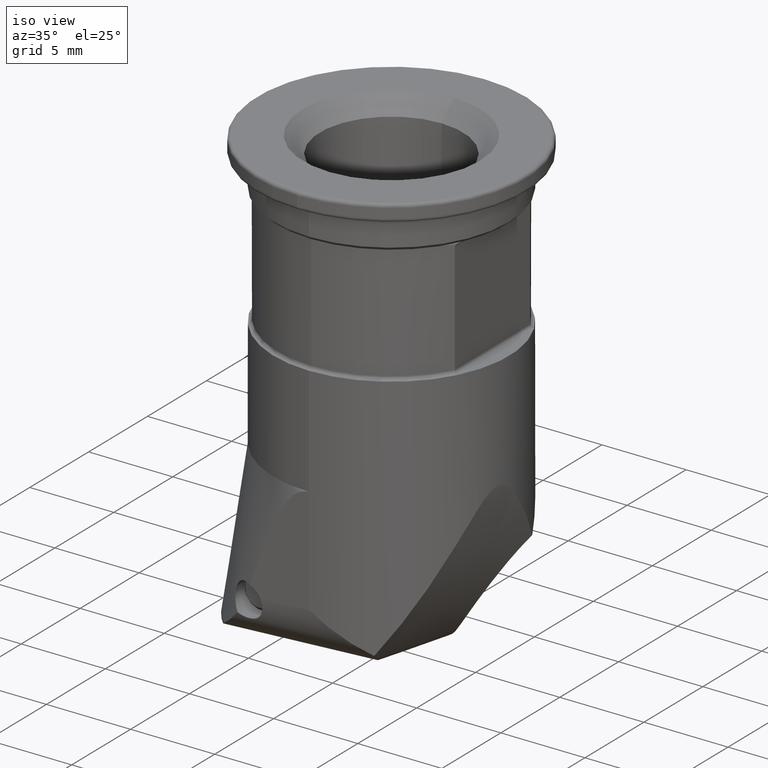
[diagram: clean part render]
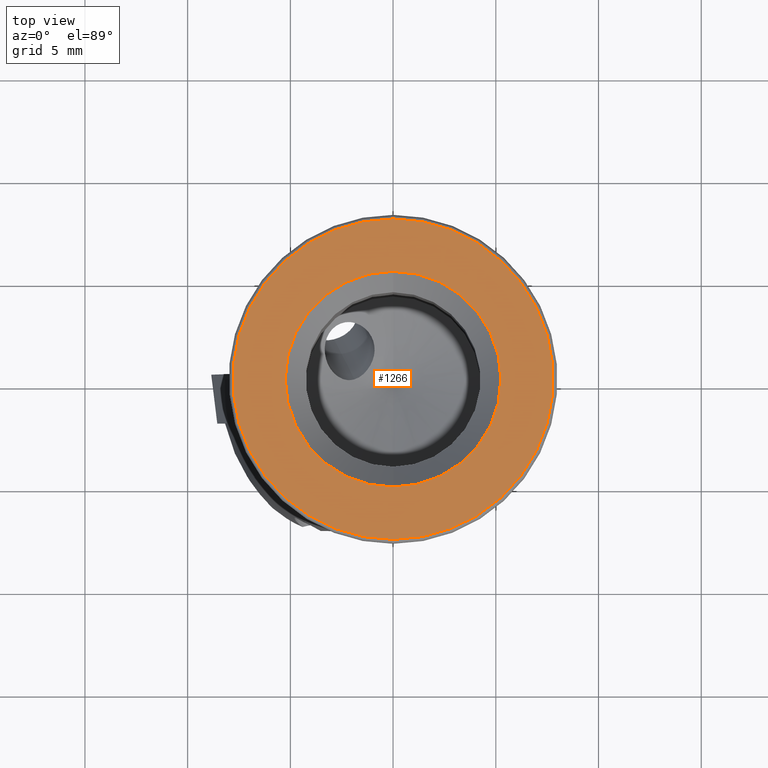
[diagram: tour spotlight — one face highlighted and labeled with its STEP entity id]
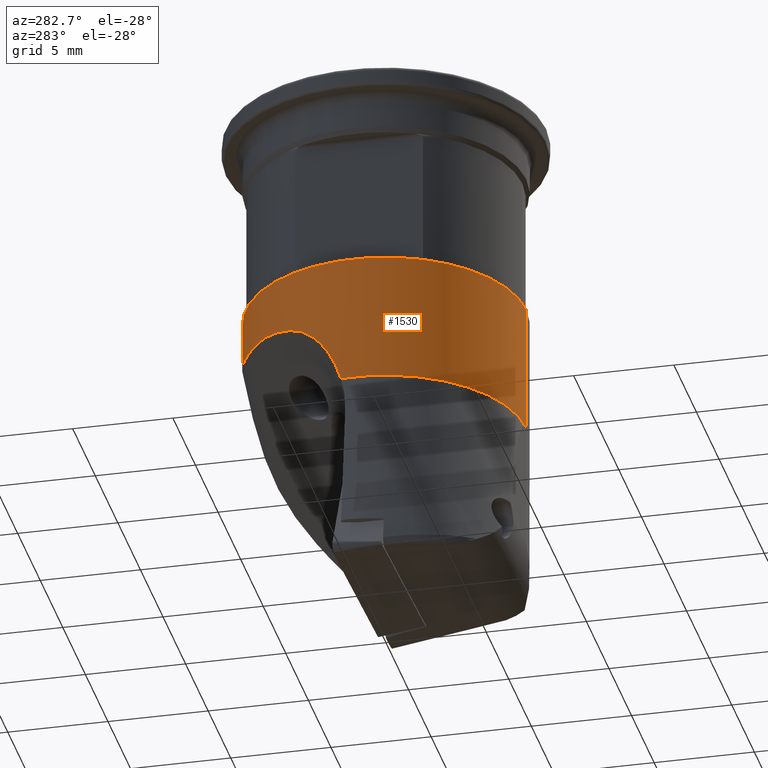
[diagram: tour spotlight — one face highlighted and labeled with its STEP entity id]
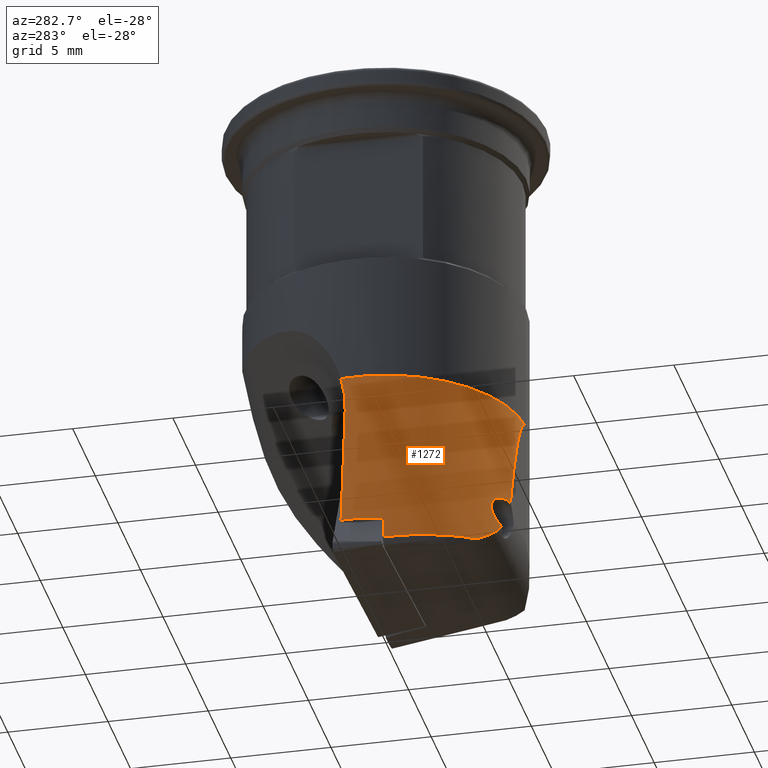
[diagram: tour spotlight — one face highlighted and labeled with its STEP entity id]
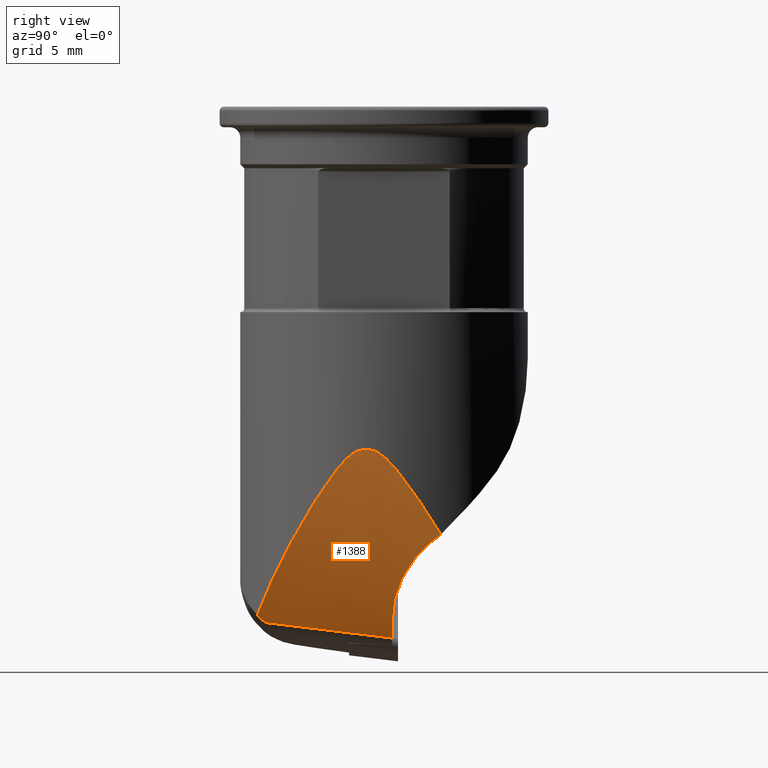
[diagram: tour spotlight — one face highlighted and labeled with its STEP entity id]
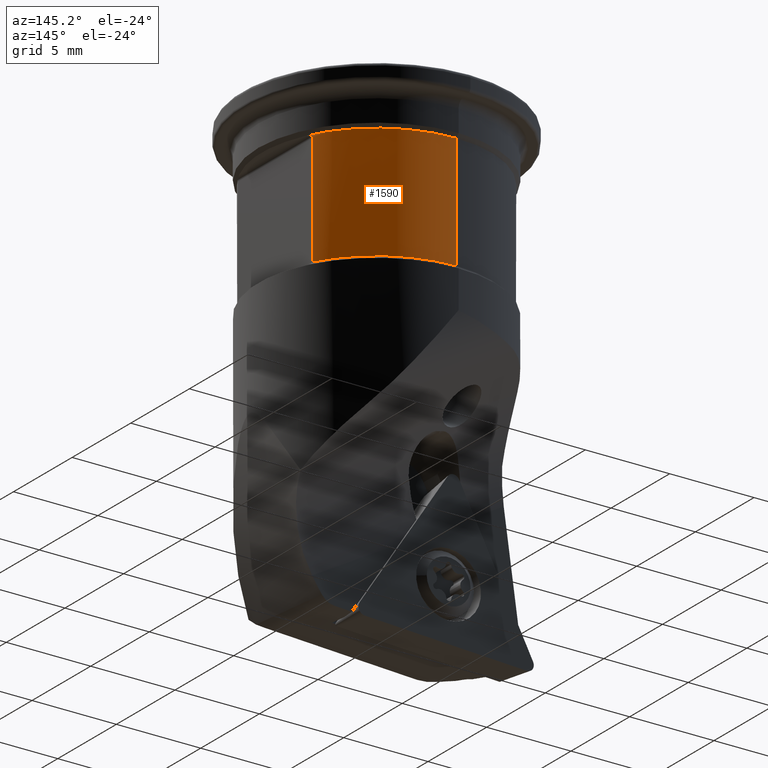
[diagram: tour spotlight — one face highlighted and labeled with its STEP entity id]
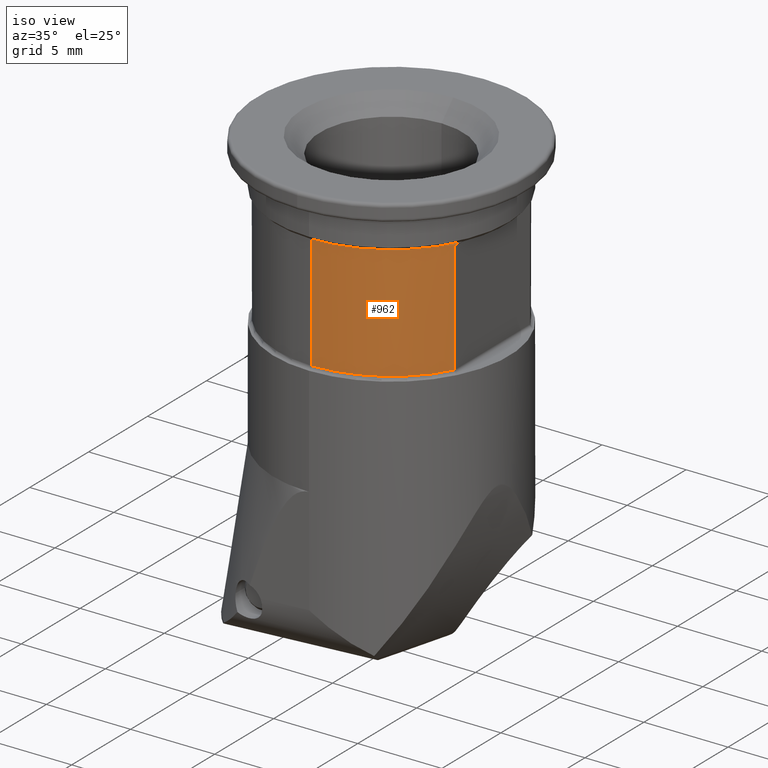
[diagram: tour spotlight — one face highlighted and labeled with its STEP entity id]
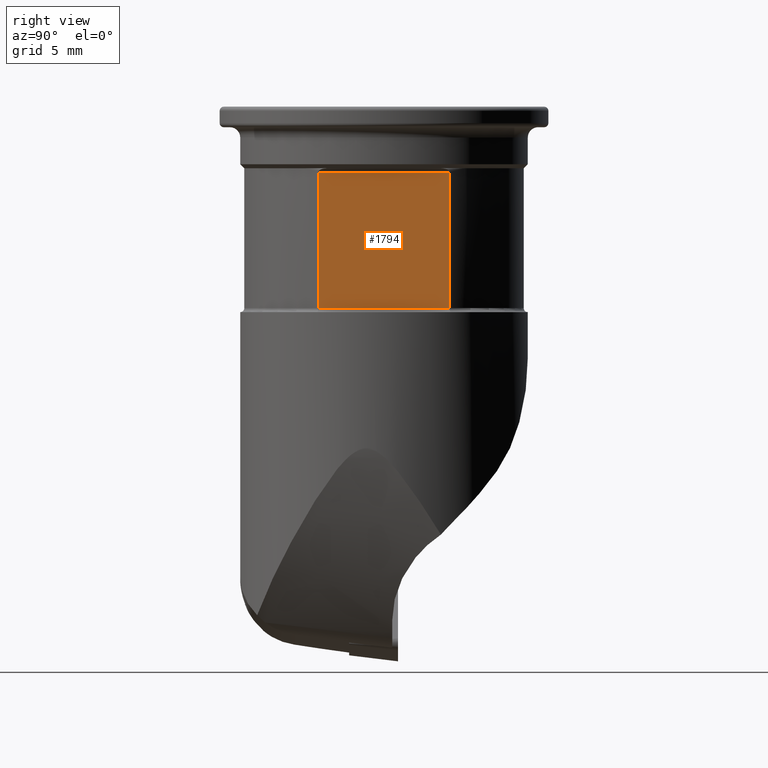
[diagram: tour spotlight — one face highlighted and labeled with its STEP entity id]
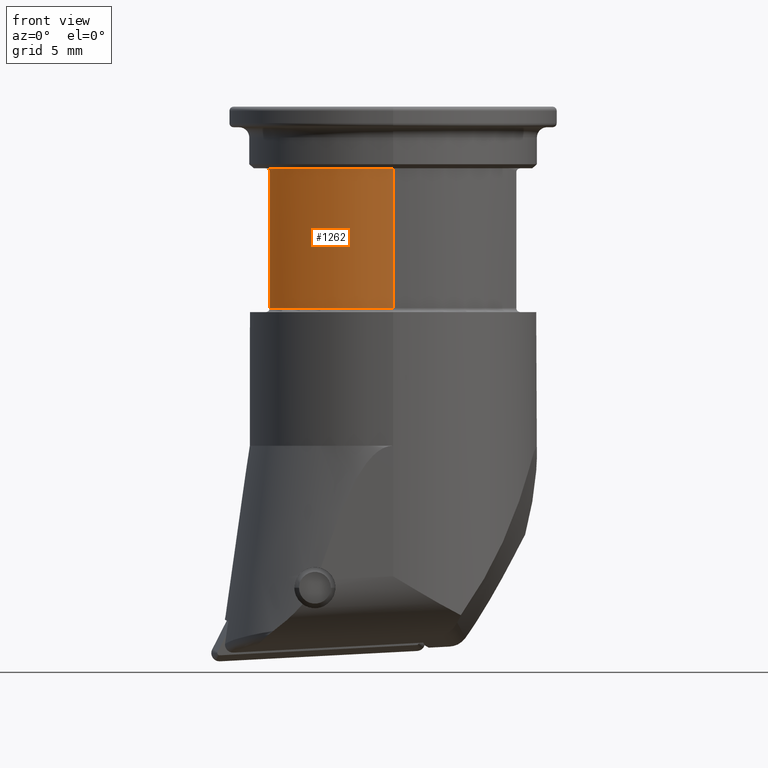
[diagram: tour spotlight — one face highlighted and labeled with its STEP entity id]
A machine part: a face-by-face anatomy tour. The part has 132 B-rep faces; the first image is the clean iso view, then the 8 largest visible faces are spotlighted one at a time (largest first), each with its STEP entity span.

Face 1 — top view, entity #1266. In plain terms, the highlighted planar face has unit normal (0, 0, 1).
Definition (entity closure, byte-faithful):
#712=EDGE_CURVE('NONE',#1644,#1148,#2025,.T.);
#846=VERTEX_POINT('NONE',#2171);
#874=EDGE_CURVE('NONE',#846,#1454,#2202,.T.);
#896=EDGE_CURVE('NONE',#1454,#846,#2226,.F.);
#1148=VERTEX_POINT('NONE',#2505);
#1266=ADVANCED_FACE('NONE',(#2636,#2637),#2638,.T.);
#1454=VERTEX_POINT('NONE',#2853);
#1644=VERTEX_POINT('NONE',#3064);
#1724=EDGE_CURVE('NONE',#1148,#1644,#3152,.T.);
#2025=CIRCLE('',#3487,7.8);
#2171=CARTESIAN_POINT('',(0.0,-5.25,0.0));
#2202=CIRCLE('',#3783,5.25);
#2226=CIRCLE('',#3823,5.25);
#2505=CARTESIAN_POINT('',(0.0,-7.8,0.0));
#2636=FACE_OUTER_BOUND('',#5116,.T.);
#2637=FACE_BOUND('',#5117,.T.);
#2638=PLANE('',#5118);
#2853=CARTESIAN_POINT('',(6.4293956955236E-016,5.25,-7.87373885897475E-032));
#3064=CARTESIAN_POINT('',(9.67470971326409E-016,7.8,-1.18481022830287E-031));
#3152=CIRCLE('',#6457,7.8);
#3487=AXIS2_PLACEMENT_3D('',#6990,#6991,#6992);
#3783=AXIS2_PLACEMENT_3D('',#7201,#7202,#7203);
#3823=AXIS2_PLACEMENT_3D('',#7235,#7236,#7237);
#5116=EDGE_LOOP('',(#7706,#7707));
#5117=EDGE_LOOP('',(#7708,#7709));
#5118=AXIS2_PLACEMENT_3D('',#7710,#7711,#7712);
#6457=AXIS2_PLACEMENT_3D('',#8370,#8371,#8372);
#6990=CARTESIAN_POINT('',(0.0,0.0,0.0));
#6991=DIRECTION('',(1.22464679914735E-016,-0.0,1.0));
#6992=DIRECTION('',(0.0,1.0,0.0));
#7201=CARTESIAN_POINT('',(0.0,0.0,0.0));
#7202=DIRECTION('',(-1.22464679914735E-016,-0.0,-1.0));
#7203=DIRECTION('',(0.0,-1.0,0.0));
#7235=CARTESIAN_POINT('',(0.0,0.0,0.0));
#7236=DIRECTION('',(1.22464679914735E-016,0.0,1.0));
#7237=DIRECTION('',(0.0,-1.0,0.0));
#7706=ORIENTED_EDGE('',*,*,#1724,.T.);
#7707=ORIENTED_EDGE('',*,*,#712,.T.);
#7708=ORIENTED_EDGE('',*,*,#874,.T.);
#7709=ORIENTED_EDGE('',*,*,#896,.T.);
#7710=CARTESIAN_POINT('',(0.0,0.0,0.0));
#7711=DIRECTION('',(1.22464679914735E-016,0.0,1.0));
#7712=DIRECTION('',(0.0,-1.0,0.0));
#8370=CARTESIAN_POINT('',(0.0,0.0,0.0));
#8371=DIRECTION('',(1.22464679914735E-016,-0.0,1.0));
#8372=DIRECTION('',(0.0,1.0,0.0));

Face 2 — auxiliary view, entity #1530. In plain terms, the highlighted cylindrical surface (partial cylindrical patch) has radius 7 mm, axis along (0, 0, 1).
Definition (entity closure, byte-faithful):
#736=VERTEX_POINT('NONE',#2050);
#764=EDGE_CURVE('NONE',#1706,#958,#2080,.F.);
#774=EDGE_CURVE('NONE',#1180,#1252,#2092,.T.);
#958=VERTEX_POINT('NONE',#2292);
#1066=EDGE_CURVE('NONE',#736,#1180,#2415,.T.);
#1070=VERTEX_POINT('NONE',#2419);
#1150=EDGE_CURVE('NONE',#958,#1712,#2507,.T.);
#1180=VERTEX_POINT('NONE',#2542);
#1186=EDGE_CURVE('NONE',#1070,#1524,#2548,.T.);
#1252=VERTEX_POINT('NONE',#2621);
#1400=VERTEX_POINT('NONE',#2795);
#1524=VERTEX_POINT('NONE',#2928);
#1530=ADVANCED_FACE('NONE',(#2934),#2935,.T.);
#1626=EDGE_CURVE('NONE',#1712,#1070,#3046,.T.);
#1706=VERTEX_POINT('NONE',#3134);
#1712=VERTEX_POINT('NONE',#3140);
#1714=EDGE_CURVE('NONE',#1524,#1252,#3142,.T.);
#1842=EDGE_CURVE('NONE',#1400,#1706,#3276,.F.);
#1852=EDGE_CURVE('NONE',#736,#1400,#3286,.F.);
#2050=CARTESIAN_POINT('',(-6.96649577815182,0.684058895851017,-16.5035189826904));
#2080=B_SPLINE_CURVE_WITH_KNOTS('',3,(#3578,#3579,#3580,#3581,#3582,#3583,#3584,#3585,#3586,#3587,#3588,#3589,#3590,#3591,#3592,#3593),.UNSPECIFIED.,.F.,.F.,(4,2,2,2,2,2,2,4),(0.0,0.00471379930615886,1.24146566658268,2.4782175338592,3.71496940113573,4.95172126841225,6.01260087204641,7.07348047568056),.UNSPECIFIED.);
#2092=LINE('',#3606,#3607);
#2292=CARTESIAN_POINT('',(-1.77635683940025E-015,7.0,-12.2321305522334));
#2415=CIRCLE('',#4410,7.0);
#2419=CARTESIAN_POINT('',(-6.2,3.24961536185438,-10.0));
#2507=LINE('',#4572,#4573);
#2542=CARTESIAN_POINT('',(-2.02109816968193E-015,-7.0,-16.5035189826904));
#2548=CIRCLE('',#4940,7.0);
#2621=CARTESIAN_POINT('',(-1.22464679914735E-015,-7.0,-10.0));
#2795=CARTESIAN_POINT('',(-6.11882341631133,3.40000000000003,-13.0994262057022));
#2928=CARTESIAN_POINT('',(-6.2,-3.24961536185438,-10.0));
#2934=FACE_OUTER_BOUND('',#5665,.T.);
#2935=CYLINDRICAL_SURFACE('',#5666,7.0);
#3046=CIRCLE('',#5877,7.0);
#3134=CARTESIAN_POINT('',(-4.33012701892221,5.49999999999999,-12.7321305522333));
#3140=CARTESIAN_POINT('',(-3.67394039744206E-016,7.0,-10.0));
#3142=CIRCLE('',#6443,7.0);
#3276=ELLIPSE('',#6714,9.33333333333331,7.0);
#3286=B_SPLINE_CURVE_WITH_KNOTS('',3,(#6728,#6729,#6730,#6731,#6732,#6733,#6734,#6735,#6736,#6737,#6738,#6739,#6740,#6741,#6742,#6743,#6744,#6745,#6746,#6747),.UNSPECIFIED.,.F.,.F.,(4,2,2,2,2,2,2,2,2,4),(3.65690770992699,4.87587694656933,5.42319808552904,5.97051922448876,6.51784036344848,7.0651615024082,8.36260439073849,9.66004727906877,10.9574901673991,12.2549330557293),.UNSPECIFIED.);
#3578=CARTESIAN_POINT('',(-1.77635683940025E-015,7.0,-12.2321305522334));
#3579=CARTESIAN_POINT('',(-0.00154679606723022,7.0,-12.2324067770284));
#3580=CARTESIAN_POINT('',(-0.00340295123879858,6.99999934375005,-12.2327382467437));
#3581=CARTESIAN_POINT('',(-0.410780033615323,6.9997112846089,-12.3054870300787));
#3582=CARTESIAN_POINT('',(-0.83162697326785,6.96355534706911,-12.3807465780462));
#3583=CARTESIAN_POINT('',(-1.67272178864028,6.81063200749847,-12.5204488133864));
#3584=CARTESIAN_POINT('',(-2.09298754200636,6.69389453373562,-12.5848166145514));
#3585=CARTESIAN_POINT('',(-2.90479848923066,6.38364861419489,-12.6851420304646));
#3586=CARTESIAN_POINT('',(-3.29693436668745,6.18990533813375,-12.7211058184819));
#3587=CARTESIAN_POINT('',(-4.02938952746506,5.74009793923253,-12.748447360759));
#3588=CARTESIAN_POINT('',(-4.36969737008418,5.48400719135509,-12.7396934149145));
#3589=CARTESIAN_POINT('',(-4.93741738795828,4.97453114581307,-12.6711663407563));
#3590=CARTESIAN_POINT('',(-5.18864474957123,4.71237172398532,-12.6170143465521));
#3591=CARTESIAN_POINT('',(-5.64284890290944,4.15773229210553,-12.4486469678582));
#3592=CARTESIAN_POINT('',(-5.84584601929945,3.86532140557128,-12.3342587570366));
#3593=CARTESIAN_POINT('',(-6.01871477682408,3.57422333315078,-12.186259627674));
#3606=CARTESIAN_POINT('',(1.26060226389638E-016,-7.0,1.02935986504359));
#3607=VECTOR('',#7065,1000.0);
#4410=AXIS2_PLACEMENT_3D('',#7454,#7455,#7456);
#4572=CARTESIAN_POINT('',(9.83312985792785E-016,7.0,1.02935986504359));
#4573=VECTOR('',#7564,1000.0);
#4940=AXIS2_PLACEMENT_3D('',#7613,#7614,#7615);
#5665=EDGE_LOOP('',(#8093,#8094,#8095,#8096,#8097,#8098,#8099,#8100,#8101));
#5666=AXIS2_PLACEMENT_3D('',#8102,#8103,#8104);
#5877=AXIS2_PLACEMENT_3D('',#8269,#8270,#8271);
#6443=AXIS2_PLACEMENT_3D('',#8363,#8364,#8365);
#6714=AXIS2_PLACEMENT_3D('',#8467,#8468,#8469);
#6728=CARTESIAN_POINT('',(-4.85556624986853,5.04216981002601,-13.0803067967852));
#6729=CARTESIAN_POINT('',(-5.14491812547995,4.763526437365,-12.98800233227));
#6730=CARTESIAN_POINT('',(-5.41219176688436,4.45791544160328,-12.9394270227268));
#6731=CARTESIAN_POINT('',(-5.75928965197452,3.98294025039694,-12.9631764650231));
#6732=CARTESIAN_POINT('',(-5.86472268404289,3.82628756436301,-12.984238875944));
#6733=CARTESIAN_POINT('',(-6.06192489067917,3.50549786814772,-13.0600089183192));
#6734=CARTESIAN_POINT('',(-6.15370516318144,3.34138161912166,-13.1147755495922));
#6735=CARTESIAN_POINT('',(-6.31853713319551,3.01811302278732,-13.257046917449));
#6736=CARTESIAN_POINT('',(-6.39179421322021,2.85867272363416,-13.3446811780785));
#6737=CARTESIAN_POINT('',(-6.51898357472284,2.55536614862716,-13.5447588118523));
#6738=CARTESIAN_POINT('',(-6.57298442937728,2.41149865616226,-13.6571567402523));
#6739=CARTESIAN_POINT('',(-6.72606747084674,1.96705736414185,-14.0535981328157));
#6740=CARTESIAN_POINT('',(-6.79677740620689,1.69186047363564,-14.3862609774018));
#6741=CARTESIAN_POINT('',(-6.89739829834779,1.21838896116963,-15.1237060823424));
#6742=CARTESIAN_POINT('',(-6.92705650482825,1.02034273323552,-15.5286694176216));
#6743=CARTESIAN_POINT('',(-6.96619566260151,0.705213470514951,-16.3780661149278));
#6744=CARTESIAN_POINT('',(-6.97565368306959,0.588316117806383,-16.822611651267));
#6745=CARTESIAN_POINT('',(-6.98685142833798,0.435622852014441,-17.7159643206606));
#6746=CARTESIAN_POINT('',(-6.98856208386246,0.400000000000001,-18.1648013890902));
#6747=CARTESIAN_POINT('',(-6.98856208386246,0.4,-18.5972823518669));
#7065=DIRECTION('',(1.22464679914735E-016,-0.0,1.0));
#7454=CARTESIAN_POINT('',(-2.02109816968193E-015,0.0,-16.5035189826904));
#7455=DIRECTION('',(1.22464679914735E-016,0.0,1.0));
#7456=DIRECTION('',(0.0,-1.0,0.0));
#7564=DIRECTION('',(1.22464679914735E-016,-0.0,1.0));
#7613=CARTESIAN_POINT('',(-1.22464679914735E-015,0.0,-10.0));
#7614=DIRECTION('',(1.22464679914735E-016,0.0,1.0));
#7615=DIRECTION('',(0.0,-1.0,0.0));
#8093=ORIENTED_EDGE('',*,*,#1150,.F.);
#8094=ORIENTED_EDGE('',*,*,#764,.F.);
#8095=ORIENTED_EDGE('',*,*,#1842,.F.);
#8096=ORIENTED_EDGE('',*,*,#1852,.F.);
#8097=ORIENTED_EDGE('',*,*,#1066,.T.);
#8098=ORIENTED_EDGE('',*,*,#774,.T.);
#8099=ORIENTED_EDGE('',*,*,#1714,.F.);
#8100=ORIENTED_EDGE('',*,*,#1186,.F.);
#8101=ORIENTED_EDGE('',*,*,#1626,.F.);
#8102=CARTESIAN_POINT('',(1.26060226389638E-016,0.0,1.02935986504359));
#8103=DIRECTION('',(1.22464679914735E-016,0.0,1.0));
#8104=DIRECTION('',(0.0,-1.0,0.0));
#8269=CARTESIAN_POINT('',(-1.22464679914735E-015,0.0,-10.0));
#8270=DIRECTION('',(1.22464679914735E-016,0.0,1.0));
#8271=DIRECTION('',(0.0,-1.0,0.0));
#8363=CARTESIAN_POINT('',(-1.22464679914735E-015,0.0,-10.0));
#8364=DIRECTION('',(1.22464679914735E-016,0.0,1.0));
#8365=DIRECTION('',(0.0,-1.0,0.0));
#8467=CARTESIAN_POINT('',(-2.31443515218608E-015,0.0,-18.8987972189));
#8468=DIRECTION('',(0.433012701892222,-0.499999999999995,0.750000000000002));
#8469=DIRECTION('',(0.490990253030988,-0.566946709513839,-0.661437827766145));

Face 3 — auxiliary view, entity #1272. In plain terms, the highlighted conical surface has half-angle 8 deg.
Definition (entity closure, byte-faithful):
#736=VERTEX_POINT('NONE',#2050);
#750=EDGE_CURVE('NONE',#758,#736,#2065,.T.);
#758=VERTEX_POINT('NONE',#2073);
#762=VERTEX_POINT('NONE',#2078);
#998=EDGE_CURVE('NONE',#1688,#1782,#2338,.T.);
#1066=EDGE_CURVE('NONE',#736,#1180,#2415,.T.);
#1086=VERTEX_POINT('NONE',#2438);
#1112=EDGE_CURVE('NONE',#1258,#1750,#2465,.T.);
#1138=EDGE_CURVE('NONE',#1258,#758,#2492,.T.);
#1180=VERTEX_POINT('NONE',#2542);
#1232=EDGE_CURVE('NONE',#1782,#1640,#2599,.F.);
#1258=VERTEX_POINT('NONE',#2627);
#1272=ADVANCED_FACE('NONE',(#2644),#2645,.T.);
#1358=EDGE_CURVE('NONE',#1180,#1640,#2748,.T.);
#1576=EDGE_CURVE('NONE',#1086,#1688,#2989,.T.);
#1640=VERTEX_POINT('NONE',#3060);
#1688=VERTEX_POINT('NONE',#3115);
#1750=VERTEX_POINT('NONE',#3178);
#1752=EDGE_CURVE('NONE',#1750,#762,#3180,.T.);
#1782=VERTEX_POINT('NONE',#3214);
#1838=EDGE_CURVE('NONE',#762,#1086,#3272,.T.);
#2050=CARTESIAN_POINT('',(-6.96649577815182,0.684058895851017,-16.5035189826904));
#2065=B_SPLINE_CURVE_WITH_KNOTS('',3,(#3551,#3552,#3553,#3554,#3555,#3556,#3557,#3558,#3559,#3560,#3561,#3562),.UNSPECIFIED.,.F.,.F.,(4,2,2,2,2,4),(0.0,1.06849516743368,2.13699033486736,3.28163156986878,4.4262728048702,5.57091403987162),.UNSPECIFIED.);
#2073=CARTESIAN_POINT('',(-7.26113325733689,0.4,-18.4399133114881));
#2078=CARTESIAN_POINT('',(-8.17753027555182,-1.7,-26.1260960911961));
#2338=B_SPLINE_CURVE_WITH_KNOTS('',3,(#4036,#4037,#4038,#4039,#4040,#4041,#4042,#4043,#4044,#4045,#4046,#4047,#4048,#4049,#4050,#4051,#4052,#4053,#4054,#4055,#4056,#4057,#4058,#4059,#4060,#4061),.UNSPECIFIED.,.F.,.F.,(4,2,2,2,2,2,2,2,2,2,2,2,4),(0.769433684979656,1.18067190367712,1.59191012237458,2.03495004381364,2.47798996525269,2.89009787201351,3.30220577877433,3.66834962505175,4.03449347132916,4.47089488594407,4.90729630055898,5.33026443663221,5.75323257270544),.UNSPECIFIED.);
#2415=CIRCLE('',#4410,7.0);
#2438=CARTESIAN_POINT('',(-5.8343778643001,-5.85763374864985,-25.5223714335019));
#2465=ELLIPSE('',#4504,9.90128257228162,8.79945899787877);
#2492=(B_SPLINE_CURVE(2,(#4547,#4548,#4549),.UNSPECIFIED.,.F.,.F.)B_SPLINE_CURVE_WITH_KNOTS((3,3),(1.18771732286996,7.78483247019741),.UNSPECIFIED.)RATIONAL_B_SPLINE_CURVE((1.0007724717832,1.0025979643392,1.00087044305686))BOUNDED_CURVE()REPRESENTATION_ITEM('')GEOMETRIC_REPRESENTATION_ITEM()CURVE());
#2542=CARTESIAN_POINT('',(-2.02109816968193E-015,-7.0,-16.5035189826904));
#2599=B_SPLINE_CURVE_WITH_KNOTS('',3,(#5009,#5010,#5011,#5012,#5013,#5014,#5015,#5016,#5017,#5018,#5019,#5020,#5021,#5022),.UNSPECIFIED.,.F.,.F.,(4,2,2,2,2,2,4),(1.36043948425609,1.5993189412061,2.03572035582101,2.47212177043592,2.83826561671334,3.20440946299075,3.34155743134716),.UNSPECIFIED.);
#2627=CARTESIAN_POINT('',(-8.18124433729493,0.400000000000001,-24.978045028055));
#2644=FACE_OUTER_BOUND('',#5126,.T.);
#2645=CONICAL_SURFACE('',#5127,7.0,0.139626340159547);
#2748=(B_SPLINE_CURVE(2,(#5324,#5325,#5326),.UNSPECIFIED.,.F.,.F.)B_SPLINE_CURVE_WITH_KNOTS((3,3),(8.2050313457992,15.7018135268752),.UNSPECIFIED.)RATIONAL_B_SPLINE_CURVE((1.07245404309669,1.07245404309669,1.01196845310403))BOUNDED_CURVE()REPRESENTATION_ITEM('')GEOMETRIC_REPRESENTATION_ITEM()CURVE());
#2989=B_SPLINE_CURVE_WITH_KNOTS('',3,(#5761,#5762,#5763,#5764,#5765,#5766,#5767,#5768,#5769,#5770,#5771,#5772,#5773,#5774,#5775,#5776,#5777,#5778,#5779,#5780),.UNSPECIFIED.,.F.,.F.,(4,2,2,2,2,2,2,2,2,4),(4.8557990326735,5.6196826011183,6.38356616956309,7.14744973800789,7.91133330645269,8.6629408006155,9.41454829477832,10.1661557889411,10.5419595360225,10.9177632831039),.UNSPECIFIED.);
#3060=CARTESIAN_POINT('',(-3.52351697086203,-6.99999999999997,-22.4575412458931));
#3115=CARTESIAN_POINT('',(-4.40311257034504,-6.77988005469449,-24.2179518847528));
#3178=CARTESIAN_POINT('',(-8.02416103796964,-1.7,-25.0580829667524));
#3180=(B_SPLINE_CURVE(2,(#6524,#6525,#6526),.UNSPECIFIED.,.F.,.F.)B_SPLINE_CURVE_WITH_KNOTS((3,3),(1.30193549868618,2.38064488360069),.UNSPECIFIED.)RATIONAL_B_SPLINE_CURVE((1.00022362142179,1.00026445102491,1.00021942641009))BOUNDED_CURVE()REPRESENTATION_ITEM('')GEOMETRIC_REPRESENTATION_ITEM()CURVE());
#3214=CARTESIAN_POINT('',(-4.80238163775345,-6.37199655411833,-23.4698085906822));
#3272=B_SPLINE_CURVE_WITH_KNOTS('',3,(#6698,#6699,#6700,#6701,#6702,#6703,#6704,#6705,#6706,#6707),.UNSPECIFIED.,.F.,.F.,(4,3,3,4),(0.0,0.74058090660783,0.833405414563444,1.0),.UNSPECIFIED.);
#3551=CARTESIAN_POINT('',(-7.54994408525613,0.781242851280781,-20.7034133114881));
#3552=CARTESIAN_POINT('',(-7.51453128975512,0.665904289385048,-20.3683066164854));
#3553=CARTESIAN_POINT('',(-7.46921439032065,0.566452956655056,-19.9929254335721));
#3554=CARTESIAN_POINT('',(-7.37083792260538,0.434967071393868,-19.2315389279224));
#3555=CARTESIAN_POINT('',(-7.31805949122975,0.402929427578221,-18.8454978405467));
#3556=CARTESIAN_POINT('',(-7.21554507758948,0.397285024979951,-18.1149650701797));
#3557=CARTESIAN_POINT('',(-7.1590231223981,0.426037163592903,-17.7227978047933));
#3558=CARTESIAN_POINT('',(-7.03987906399974,0.555786664314545,-16.9407495964931));
#3559=CARTESIAN_POINT('',(-6.97728061551291,0.656684652213376,-16.5508485661169));
#3560=CARTESIAN_POINT('',(-6.84028066836118,0.929280388577184,-15.8035759724842));
#3561=CARTESIAN_POINT('',(-6.76575764660184,1.10103115249169,-15.445872177934));
#3562=CARTESIAN_POINT('',(-6.67920213825929,1.30418919695898,-15.1184401451777));
#4036=CARTESIAN_POINT('',(-3.13894615927795,-7.44175799344658,-24.1644887368048));
#4037=CARTESIAN_POINT('',(-3.2390858698888,-7.41311238668515,-24.2536079333064));
#4038=CARTESIAN_POINT('',(-3.36156990836027,-7.36991247624076,-24.3244738800085));
#4039=CARTESIAN_POINT('',(-3.61755469886086,-7.26099610811983,-24.4091917684524));
#4040=CARTESIAN_POINT('',(-3.75094334519381,-7.19518456315992,-24.423260000923));
#4041=CARTESIAN_POINT('',(-3.99963852261151,-7.05748752801785,-24.4065824781404));
#4042=CARTESIAN_POINT('',(-4.13257945601367,-6.97468732547088,-24.3713294087371));
#4043=CARTESIAN_POINT('',(-4.37218985436008,-6.8069576544286,-24.251048469352));
#4044=CARTESIAN_POINT('',(-4.47898216398304,-6.72215083176869,-24.1660943634288));
#4045=CARTESIAN_POINT('',(-4.63989126199536,-6.57979747977391,-23.9787527633));
#4046=CARTESIAN_POINT('',(-4.70825269937234,-6.51080347580602,-23.8646289624329));
#4047=CARTESIAN_POINT('',(-4.79422814213951,-6.40309198989047,-23.6098970682389));
#4048=CARTESIAN_POINT('',(-4.81170897303748,-6.36482325787691,-23.4690545451362));
#4049=CARTESIAN_POINT('',(-4.78993647847092,-6.33602307886031,-23.2121619249776));
#4050=CARTESIAN_POINT('',(-4.75546924577931,-6.33994940670523,-23.0854244382823));
#4051=CARTESIAN_POINT('',(-4.64272071556669,-6.3836278843426,-22.8587657994047));
#4052=CARTESIAN_POINT('',(-4.56459426920148,-6.4228993974645,-22.7586753097461));
#4053=CARTESIAN_POINT('',(-4.38147706697318,-6.52094761457764,-22.5900960728205));
#4054=CARTESIAN_POINT('',(-4.26002212950913,-6.58944505418875,-22.5171627525263));
#4055=CARTESIAN_POINT('',(-4.00127416106722,-6.73507066422464,-22.4276619090517));
#4056=CARTESIAN_POINT('',(-3.86388630339584,-6.81209153065209,-22.4111940230629));
#4057=CARTESIAN_POINT('',(-3.61370892809557,-6.95060922607412,-22.4279709421797));
#4058=CARTESIAN_POINT('',(-3.48210286596131,-7.0225970942267,-22.4610547624581));
#4059=CARTESIAN_POINT('',(-3.24019885210944,-7.15585972260621,-22.5804534276893));
#4060=CARTESIAN_POINT('',(-3.13005187147622,-7.21731564577478,-22.6668718054468));
#4061=CARTESIAN_POINT('',(-3.04451583396102,-7.26834895319036,-22.7666575395179));
#4410=AXIS2_PLACEMENT_3D('',#7454,#7455,#7456);
#4504=AXIS2_PLACEMENT_3D('',#7509,#7510,#7511);
#4547=CARTESIAN_POINT('',(-8.18124433729493,0.400000000000001,-24.978045028055));
#4548=CARTESIAN_POINT('',(-7.69385068192673,0.400000000000001,-21.5141965919759));
#4549=CARTESIAN_POINT('',(-7.26113325733853,0.400000000000001,-18.4399133114879));
#5009=CARTESIAN_POINT('',(-3.52351697086203,-6.99999999999997,-22.4575412458931));
#5010=CARTESIAN_POINT('',(-3.5950112343901,-6.96072873319307,-22.4366697496321));
#5011=CARTESIAN_POINT('',(-3.66730033417769,-6.92093684640345,-22.4243770972762));
#5012=CARTESIAN_POINT('',(-3.86388630339584,-6.81209153065209,-22.4111940230629));
#5013=CARTESIAN_POINT('',(-4.00127416106722,-6.73507066422464,-22.4276619090517));
#5014=CARTESIAN_POINT('',(-4.26002212950913,-6.58944505418875,-22.5171627525263));
#5015=CARTESIAN_POINT('',(-4.38147706697318,-6.52094761457764,-22.5900960728205));
#5016=CARTESIAN_POINT('',(-4.56459426920148,-6.4228993974645,-22.7586753097461));
#5017=CARTESIAN_POINT('',(-4.64272071556669,-6.3836278843426,-22.8587657994047));
#5018=CARTESIAN_POINT('',(-4.75546924577931,-6.33994940670523,-23.0854244382823));
#5019=CARTESIAN_POINT('',(-4.78993647847092,-6.33602307886031,-23.2121619249776));
#5020=CARTESIAN_POINT('',(-4.80401665015923,-6.35464802162781,-23.3782931960745));
#5021=CARTESIAN_POINT('',(-4.80477554099841,-6.36215358410821,-23.424130195648));
#5022=CARTESIAN_POINT('',(-4.80238163775345,-6.37199655411833,-23.4698085906822));
#5126=EDGE_LOOP('',(#7715,#7716,#7717,#7718,#7719,#7720,#7721,#7722,#7723,#7724));
#5127=AXIS2_PLACEMENT_3D('',#7725,#7726,#7727);
#5324=CARTESIAN_POINT('',(-1.6563477482644E-015,-6.99999999999997,-16.5035189826902));
#5325=CARTESIAN_POINT('',(-1.66239665067288,-6.99999999999997,-16.5035189826902));
#5326=CARTESIAN_POINT('',(-3.52351697086204,-6.99999999999997,-22.4575412458931));
#5761=CARTESIAN_POINT('',(-7.22913954766379,-4.21341961157851,-26.2330673192225));
#5762=CARTESIAN_POINT('',(-7.09871043487057,-4.4309583327471,-26.2106955411312));
#5763=CARTESIAN_POINT('',(-6.95279745016138,-4.64491550321901,-26.1636875110069));
#5764=CARTESIAN_POINT('',(-6.63787370824664,-5.05307438126847,-26.0265863196478));
#5765=CARTESIAN_POINT('',(-6.46887220526262,-5.24730090057114,-25.936545773705));
#5766=CARTESIAN_POINT('',(-6.11894949677859,-5.60720334670282,-25.7232745451465));
#5767=CARTESIAN_POINT('',(-5.93791195557018,-5.77303786562112,-25.5999913306348));
#5768=CARTESIAN_POINT('',(-5.57708425419926,-6.07127568656051,-25.3318561553611));
#5769=CARTESIAN_POINT('',(-5.39731632027356,-6.20369869686937,-25.1869962066559));
#5770=CARTESIAN_POINT('',(-5.05677609028812,-6.43143566173787,-24.8914313613194));
#5771=CARTESIAN_POINT('',(-4.88167005921155,-6.53654855479983,-24.7287828193582));
#5772=CARTESIAN_POINT('',(-4.53924260110935,-6.7194567408645,-24.3781716910551));
#5773=CARTESIAN_POINT('',(-4.3718560824272,-6.79736243037763,-24.1903302913219));
#5774=CARTESIAN_POINT('',(-4.06895456715051,-6.91846232817851,-23.7945848476909));
#5775=CARTESIAN_POINT('',(-3.93376037175494,-6.96173671913017,-23.5876943197776));
#5776=CARTESIAN_POINT('',(-3.77769795680843,-6.99490588890723,-23.2607109825657));
#5777=CARTESIAN_POINT('',(-3.7335915202488,-7.00062895339017,-23.1489609439442));
#5778=CARTESIAN_POINT('',(-3.66675148846171,-6.99926235676407,-22.9181074363625));
#5779=CARTESIAN_POINT('',(-3.64398907976292,-6.99221011921763,-22.7990120908422));
#5780=CARTESIAN_POINT('',(-3.63593190135247,-6.9767497313897,-22.6749632738928));
#6524=CARTESIAN_POINT('',(-8.02416103796907,-1.7,-25.0580829667484));
#6525=CARTESIAN_POINT('',(-8.10015036372771,-1.7,-25.5870344902137));
#6526=CARTESIAN_POINT('',(-8.17753027554919,-1.7,-26.1260960911775));
#6698=CARTESIAN_POINT('',(-8.17753027555182,-1.7,-26.1260960911961));
#6699=CARTESIAN_POINT('',(-7.9138884921736,-2.86488031787402,-25.9764667759033));
#6700=CARTESIAN_POINT('',(-7.39591055333332,-3.97184996515187,-25.8209771525264));
#6701=CARTESIAN_POINT('',(-6.66989634636087,-4.92100938156586,-25.6736551797268));
#6702=CARTESIAN_POINT('',(-6.57889763044786,-5.03997714729401,-25.655189824336));
#6703=CARTESIAN_POINT('',(-6.48465738628947,-5.15652876351217,-25.6368468829732));
#6704=CARTESIAN_POINT('',(-6.38732473750042,-5.27047030524137,-25.6186571095515));
#6705=CARTESIAN_POINT('',(-6.21263927315939,-5.4749641865066,-25.5860114448546));
#6706=CARTESIAN_POINT('',(-6.02801656697888,-5.67101161945193,-25.5538685764342));
#6707=CARTESIAN_POINT('',(-5.8343778643001,-5.85763374864985,-25.5223714335019));
#7454=CARTESIAN_POINT('',(-2.02109816968193E-015,0.0,-16.5035189826904));
#7455=DIRECTION('',(1.22464679914735E-016,0.0,1.0));
#7456=DIRECTION('',(0.0,-1.0,0.0));
#7509=CARTESIAN_POINT('',(0.63174345092871,-1.77635683940025E-015,-29.4684865922393));
#7510=DIRECTION('',(0.453990499739554,7.24340875355043E-032,0.891006524188364));
#7511=DIRECTION('',(0.891006524188364,-9.62180094307105E-016,-0.453990499739554));
#7715=ORIENTED_EDGE('',*,*,#1838,.T.);
#7716=ORIENTED_EDGE('',*,*,#1576,.T.);
#7717=ORIENTED_EDGE('',*,*,#998,.T.);
#7718=ORIENTED_EDGE('',*,*,#1232,.T.);
#7719=ORIENTED_EDGE('',*,*,#1358,.F.);
#7720=ORIENTED_EDGE('',*,*,#1066,.F.);
#7721=ORIENTED_EDGE('',*,*,#750,.F.);
#7722=ORIENTED_EDGE('',*,*,#1138,.F.);
#7723=ORIENTED_EDGE('',*,*,#1112,.T.);
#7724=ORIENTED_EDGE('',*,*,#1752,.T.);
#7725=CARTESIAN_POINT('',(-2.02109816968193E-015,0.0,-16.5035189826904));
#7726=DIRECTION('',(-1.22464679914735E-016,0.0,-1.0));
#7727=DIRECTION('',(0.0,1.0,0.0));

Face 4 — right view, entity #1388. In plain terms, the highlighted conical surface has half-angle 7 deg.
Definition (entity closure, byte-faithful):
#718=VERTEX_POINT('NONE',#2031);
#836=VERTEX_POINT('NONE',#2161);
#842=EDGE_CURVE('NONE',#1810,#1744,#2167,.T.);
#856=VERTEX_POINT('NONE',#2182);
#1028=EDGE_CURVE('NONE',#836,#1878,#2371,.F.);
#1102=EDGE_CURVE('NONE',#1422,#1810,#2455,.F.);
#1182=EDGE_CURVE('NONE',#1744,#1518,#2544,.F.);
#1344=EDGE_CURVE('NONE',#856,#718,#2732,.F.);
#1388=ADVANCED_FACE('NONE',(#2780),#2781,.T.);
#1422=VERTEX_POINT('NONE',#2817);
#1438=VERTEX_POINT('NONE',#2836);
#1518=VERTEX_POINT('NONE',#2922);
#1676=EDGE_CURVE('NONE',#1438,#1422,#3101,.F.);
#1744=VERTEX_POINT('NONE',#3172);
#1790=EDGE_CURVE('NONE',#718,#1438,#3222,.T.);
#1810=VERTEX_POINT('NONE',#3244);
#1820=EDGE_CURVE('NONE',#1518,#836,#3254,.F.);
#1878=VERTEX_POINT('NONE',#3314);
#1968=EDGE_CURVE('NONE',#1878,#856,#3419,.F.);
#2031=CARTESIAN_POINT('',(3.29838022265162,-6.17419532464115,-24.7547677929149));
#2161=CARTESIAN_POINT('',(6.98758179494278,-0.394652782444762,-16.7723278708547));
#2167=B_SPLINE_CURVE_WITH_KNOTS('',3,(#3706,#3707,#3708,#3709,#3710,#3711,#3712,#3713,#3714,#3715,#3716,#3717,#3718,#3719,#3720,#3721,#3722,#3723,#3724,#3725),.UNSPECIFIED.,.F.,.F.,(4,2,2,2,2,2,2,2,2,4),(6.63652239754953,7.74995646911298,8.86339054067643,9.96933488671445,11.0752792327525,12.1812235787905,13.2871679248285,14.391811594401,15.4964552639734,16.6010989335459),.UNSPECIFIED.);
#2182=CARTESIAN_POINT('',(6.86464660039876,-1.36990038018603,-16.7884912981286));
#2371=B_SPLINE_CURVE_WITH_KNOTS('',3,(#4121,#4122,#4123,#4124,#4125,#4126),.UNSPECIFIED.,.F.,.F.,(4,2,4),(-0.00095899181039046,-0.00047949590519523,-0.0),.UNSPECIFIED.);
#2455=CIRCLE('',#4488,20.2578475778961);
#2544=B_SPLINE_CURVE_WITH_KNOTS('',3,(#4892,#4893,#4894,#4895,#4896,#4897,#4898,#4899,#4900,#4901,#4902,#4903,#4904,#4905,#4906,#4907,#4908,#4909,#4910,#4911,#4912,#4913,#4914,#4915,#4916,#4917,#4918,#4919,#4920,#4921,#4922,#4923,#4924,#4925,#4926,#4927,#4928,#4929,#4930,#4931,#4932,#4933),.UNSPECIFIED.,.F.,.F.,(4,2,2,2,2,2,2,2,2,2,2,2,2,2,2,2,2,2,2,2,4),(0.0,2.03990172280936,4.07980344561873,6.11970516842809,8.15960689123745,9.86495752894426,10.7176328477977,11.5703081666511,12.2614474492123,12.607017090493,12.9525867317736,13.2623377549498,13.572088778126,13.8818398013023,14.1915908244785,14.811092870831,15.4305949171834,16.6695990098883,17.9086031025932,19.9649502830436,22.021297463494),.UNSPECIFIED.);
#2732=B_SPLINE_CURVE_WITH_KNOTS('',3,(#5261,#5262,#5263,#5264,#5265,#5266,#5267,#5268,#5269,#5270,#5271,#5272,#5273,#5274,#5275,#5276,#5277,#5278,#5279,#5280,#5281,#5282,#5283,#5284,#5285,#5286,#5287,#5288,#5289,#5290,#5291,#5292,#5293,#5294,#5295,#5296,#5297,#5298,#5299,#5300,#5301,#5302),.UNSPECIFIED.,.F.,.F.,(4,2,2,2,2,2,2,2,2,2,2,2,2,2,2,2,2,2,2,2,4),(0.0,2.03990172280936,4.07980344561873,6.11970516842809,8.15960689123745,9.86495752894426,10.7176328477977,11.5703081666511,12.2614474492123,12.607017090493,12.9525867317736,13.2623377549498,13.572088778126,13.8818398013023,14.1915908244785,14.811092870831,15.4305949171834,16.6695990098883,17.9086031025932,19.9649502830436,22.021297463494),.UNSPECIFIED.);
#2780=FACE_OUTER_BOUND('',#5389,.T.);
#2781=CONICAL_SURFACE('',#5390,20.0,0.122173047639603);
#2817=CARTESIAN_POINT('',(3.52007766511861,0.400000000000001,-25.863857884927));
#2836=CARTESIAN_POINT('',(3.12003226631478,-5.78464938122243,-25.1089304992821));
#2922=CARTESIAN_POINT('',(6.99123751229997,-0.350140038569912,-16.7863895080608));
#3101=B_SPLINE_CURVE_WITH_KNOTS('',3,(#5952,#5953,#5954,#5955,#5956,#5957,#5958),.UNSPECIFIED.,.F.,.F.,(4,3,4),(0.0,0.83334203553916,1.0),.UNSPECIFIED.);
#3172=CARTESIAN_POINT('',(6.42924304014983,2.76854364796456,-20.8289220561862));
#3222=B_SPLINE_CURVE_WITH_KNOTS('',3,(#6613,#6614,#6615,#6616,#6617,#6618,#6619,#6620,#6621,#6622,#6623,#6624,#6625,#6626,#6627,#6628,#6629,#6630),.UNSPECIFIED.,.F.,.F.,(4,2,2,2,2,2,2,2,4),(2.8063358181846,3.74178109091281,4.67620852786339,5.14342224633868,5.61063596481397,6.00454934670575,6.39846272859753,6.7923761104893,7.18628949238108),.UNSPECIFIED.);
#3244=CARTESIAN_POINT('',(4.1006312991996,0.4,-24.9996311366736));
#3254=B_SPLINE_CURVE_WITH_KNOTS('',3,(#6669,#6670,#6671,#6672),.UNSPECIFIED.,.F.,.F.,(4,4),(-0.00530506107757635,-0.00525879606851468),.UNSPECIFIED.);
#3314=CARTESIAN_POINT('',(6.87263068155823,-1.32196026922619,-16.773102527419));
#3419=B_SPLINE_CURVE_WITH_KNOTS('',3,(#6939,#6940,#6941,#6942),.UNSPECIFIED.,.F.,.F.,(4,4),(0.0,1.0),.UNSPECIFIED.);
#3706=CARTESIAN_POINT('',(2.84208070122056,0.830339455558063,-26.8495369436682));
#3707=CARTESIAN_POINT('',(3.05719084284149,0.684286233904817,-26.5527684366064));
#3708=CARTESIAN_POINT('',(3.27681838589209,0.5742847274388,-26.2412446160226));
#3709=CARTESIAN_POINT('',(3.70723936287625,0.431232718915655,-25.6087405091396));
#3710=CARTESIAN_POINT('',(3.91802090693403,0.398220581220548,-25.2877434557121));
#3711=CARTESIAN_POINT('',(4.31408307668253,0.401916995148331,-24.6629118865425));
#3712=CARTESIAN_POINT('',(4.51298146842202,0.438289724631214,-24.3377447023253));
#3713=CARTESIAN_POINT('',(4.8983066062389,0.587589846991524,-23.6842865143442));
#3714=CARTESIAN_POINT('',(5.08475573672712,0.700489489508785,-23.3560023701985));
#3715=CARTESIAN_POINT('',(5.43484997303021,0.997991328544416,-22.7210497782197));
#3716=CARTESIAN_POINT('',(5.59883341614769,1.18282500061316,-22.4139135731789));
#3717=CARTESIAN_POINT('',(5.89914556666399,1.60944557113536,-21.8427641859421));
#3718=CARTESIAN_POINT('',(6.03555974922173,1.85125878590618,-21.5788156091803));
#3719=CARTESIAN_POINT('',(6.27899746025681,2.36601380120947,-21.1111277300752));
#3720=CARTESIAN_POINT('',(6.39447365491097,2.65689788241707,-20.89095568594));
#3721=CARTESIAN_POINT('',(6.60668268081306,3.29097548318073,-20.5042105280756));
#3722=CARTESIAN_POINT('',(6.70352338462127,3.6341544236793,-20.3376727103302));
#3723=CARTESIAN_POINT('',(6.87607317267217,4.35049030360811,-20.0749189030773));
#3724=CARTESIAN_POINT('',(6.95199391248683,4.72424548800177,-19.978524407805));
#3725=CARTESIAN_POINT('',(7.01700607588765,5.10011720825074,-19.9197426455415));
#4121=CARTESIAN_POINT('',(6.87263068155823,-1.32196026922619,-16.773102527419));
#4122=CARTESIAN_POINT('',(6.89739706336268,-1.17127747491235,-16.72705514969));
#4123=CARTESIAN_POINT('',(6.92126801863895,-1.01698758373904,-16.689630593286));
#4124=CARTESIAN_POINT('',(6.95995120798893,-0.705357712116303,-16.6887840425118));
#4125=CARTESIAN_POINT('',(6.97473820648207,-0.5474162936904,-16.7262099440465));
#4126=CARTESIAN_POINT('',(6.98758179494278,-0.394652782444762,-16.7723278708547));
#4488=AXIS2_PLACEMENT_3D('',#7501,#7502,#7503);
#4892=CARTESIAN_POINT('',(1.46677140068001,-6.84460237399859,-27.0172677929148));
#4893=CARTESIAN_POINT('',(1.92308112940978,-6.74681699168107,-26.5227226491531));
#4894=CARTESIAN_POINT('',(2.37092103418186,-6.60247644639963,-25.9926987320081));
#4895=CARTESIAN_POINT('',(3.21909521677221,-6.23308814243204,-24.8850475835409));
#4896=CARTESIAN_POINT('',(3.61947216154266,-6.00822108577146,-24.3073927700698));
#4897=CARTESIAN_POINT('',(4.35341164227245,-5.4997380665307,-23.1332686502513));
#4898=CARTESIAN_POINT('',(4.68720708255528,-5.21613633924565,-22.5364874944564));
#4899=CARTESIAN_POINT('',(5.27975141726129,-4.61543211461429,-21.3568480840427));
#4900=CARTESIAN_POINT('',(5.5385445172463,-4.29848338654649,-20.7739337369324));
#4901=CARTESIAN_POINT('',(5.94582421534624,-3.70859940786793,-19.7518249964205));
#4902=CARTESIAN_POINT('',(6.12968793500314,-3.40035122728336,-19.2405571082338));
#4903=CARTESIAN_POINT('',(6.37178529680634,-2.90417321416686,-18.4878498800254));
#4904=CARTESIAN_POINT('',(6.44712247417316,-2.73319189251614,-18.2394370075213));
#4905=CARTESIAN_POINT('',(6.58522359078242,-2.38129303201311,-17.7642158112624));
#4906=CARTESIAN_POINT('',(6.64798021093614,-2.20073395391638,-17.5371400274572));
#4907=CARTESIAN_POINT('',(6.75057628934227,-1.85883237466967,-17.1664710051655));
#4908=CARTESIAN_POINT('',(6.79815802782906,-1.68080766723644,-16.9933437315786));
#4909=CARTESIAN_POINT('',(6.86186264143794,-1.38739246439748,-16.794003850179));
#4910=CARTESIAN_POINT('',(6.8818958457431,-1.28499254332154,-16.7378132377906));
#4911=CARTESIAN_POINT('',(6.91830775228507,-1.07178081297949,-16.6599352016));
#4912=CARTESIAN_POINT('',(6.93469256459518,-0.960887450978874,-16.638474092643));
#4913=CARTESIAN_POINT('',(6.96110694557599,-0.744075449779645,-16.6417857351468));
#4914=CARTESIAN_POINT('',(6.96982882456945,-0.654466664569771,-16.6607356341665));
#4915=CARTESIAN_POINT('',(6.9833463939761,-0.489605588640772,-16.7147340671218));
#4916=CARTESIAN_POINT('',(6.98808865668942,-0.414445916488616,-16.7500782891418));
#4917=CARTESIAN_POINT('',(6.99511600384845,-0.271110369686944,-16.830956314571));
#4918=CARTESIAN_POINT('',(6.99735718320699,-0.203324039045344,-16.876468708386));
#4919=CARTESIAN_POINT('',(6.99994575794848,-0.0714674701400596,-16.9752035357403));
#4920=CARTESIAN_POINT('',(7.00028367067188,-0.00743338595778522,-17.028474490779));
#4921=CARTESIAN_POINT('',(6.99876014243293,0.18292994188568,-17.1991987173824));
#4922=CARTESIAN_POINT('',(6.99439516684304,0.305568646699284,-17.3256333374743));
#4923=CARTESIAN_POINT('',(6.9794659034579,0.549537655422091,-17.5981041152548));
#4924=CARTESIAN_POINT('',(6.96887514783573,0.670741751906357,-17.7442518015579));
#4925=CARTESIAN_POINT('',(6.92709786770169,1.03719493587251,-18.2089739165202));
#4926=CARTESIAN_POINT('',(6.88630434468257,1.27980793185213,-18.5465483231511));
#4927=CARTESIAN_POINT('',(6.78093068939019,1.75444428630871,-19.2364319304646));
#4928=CARTESIAN_POINT('',(6.71627982173302,1.98620669752045,-19.5889098205074));
#4929=CARTESIAN_POINT('',(6.52256881030182,2.56968388496237,-20.4991975500836));
#4930=CARTESIAN_POINT('',(6.36736713824219,2.93652820496125,-21.0965882087444));
#4931=CARTESIAN_POINT('',(5.9829693653849,3.65658852744809,-22.311838921464));
#4932=CARTESIAN_POINT('',(5.75370929962254,4.00961262901621,-22.9297924375828));
#4933=CARTESIAN_POINT('',(5.48883119399024,4.34427578819297,-23.5413163992755));
#5261=CARTESIAN_POINT('',(1.46677140068001,-6.84460237399859,-27.0172677929148));
#5262=CARTESIAN_POINT('',(1.92308112940978,-6.74681699168107,-26.5227226491531));
#5263=CARTESIAN_POINT('',(2.37092103418186,-6.60247644639963,-25.9926987320081));
#5264=CARTESIAN_POINT('',(3.21909521677221,-6.23308814243204,-24.8850475835409));
#5265=CARTESIAN_POINT('',(3.61947216154266,-6.00822108577146,-24.3073927700698));
#5266=CARTESIAN_POINT('',(4.35341164227245,-5.4997380665307,-23.1332686502513));
#5267=CARTESIAN_POINT('',(4.68720708255528,-5.21613633924565,-22.5364874944564));
#5268=CARTESIAN_POINT('',(5.27975141726129,-4.61543211461429,-21.3568480840427));
#5269=CARTESIAN_POINT('',(5.5385445172463,-4.29848338654649,-20.7739337369324));
#5270=CARTESIAN_POINT('',(5.94582421534624,-3.70859940786793,-19.7518249964205));
#5271=CARTESIAN_POINT('',(6.12968793500314,-3.40035122728336,-19.2405571082338));
#5272=CARTESIAN_POINT('',(6.37178529680634,-2.90417321416686,-18.4878498800254));
#5273=CARTESIAN_POINT('',(6.44712247417316,-2.73319189251614,-18.2394370075213));
#5274=CARTESIAN_POINT('',(6.58522359078242,-2.38129303201311,-17.7642158112624));
#5275=CARTESIAN_POINT('',(6.64798021093614,-2.20073395391638,-17.5371400274572));
#5276=CARTESIAN_POINT('',(6.75057628934227,-1.85883237466967,-17.1664710051655));
#5277=CARTESIAN_POINT('',(6.79815802782906,-1.68080766723644,-16.9933437315786));
#5278=CARTESIAN_POINT('',(6.86186264143794,-1.38739246439748,-16.794003850179));
#5279=CARTESIAN_POINT('',(6.8818958457431,-1.28499254332154,-16.7378132377906));
#5280=CARTESIAN_POINT('',(6.91830775228507,-1.07178081297949,-16.6599352016));
#5281=CARTESIAN_POINT('',(6.93469256459518,-0.960887450978874,-16.638474092643));
#5282=CARTESIAN_POINT('',(6.96110694557599,-0.744075449779645,-16.6417857351468));
#5283=CARTESIAN_POINT('',(6.96982882456945,-0.654466664569771,-16.6607356341665));
#5284=CARTESIAN_POINT('',(6.9833463939761,-0.489605588640772,-16.7147340671218));
#5285=CARTESIAN_POINT('',(6.98808865668942,-0.414445916488616,-16.7500782891418));
#5286=CARTESIAN_POINT('',(6.99511600384845,-0.271110369686944,-16.830956314571));
#5287=CARTESIAN_POINT('',(6.99735718320699,-0.203324039045344,-16.876468708386));
#5288=CARTESIAN_POINT('',(6.99994575794848,-0.0714674701400596,-16.9752035357403));
#5289=CARTESIAN_POINT('',(7.00028367067188,-0.00743338595778522,-17.028474490779));
#5290=CARTESIAN_POINT('',(6.99876014243293,0.18292994188568,-17.1991987173824));
#5291=CARTESIAN_POINT('',(6.99439516684304,0.305568646699284,-17.3256333374743));
#5292=CARTESIAN_POINT('',(6.9794659034579,0.549537655422091,-17.5981041152548));
#5293=CARTESIAN_POINT('',(6.96887514783573,0.670741751906357,-17.7442518015579));
#5294=CARTESIAN_POINT('',(6.92709786770169,1.03719493587251,-18.2089739165202));
#5295=CARTESIAN_POINT('',(6.88630434468257,1.27980793185213,-18.5465483231511));
#5296=CARTESIAN_POINT('',(6.78093068939019,1.75444428630871,-19.2364319304646));
#5297=CARTESIAN_POINT('',(6.71627982173302,1.98620669752045,-19.5889098205074));
#5298=CARTESIAN_POINT('',(6.52256881030182,2.56968388496237,-20.4991975500836));
#5299=CARTESIAN_POINT('',(6.36736713824219,2.93652820496125,-21.0965882087444));
#5300=CARTESIAN_POINT('',(5.9829693653849,3.65658852744809,-22.311838921464));
#5301=CARTESIAN_POINT('',(5.75370929962254,4.00961262901621,-22.9297924375828));
#5302=CARTESIAN_POINT('',(5.48883119399024,4.34427578819297,-23.5413163992755));
#5389=EDGE_LOOP('',(#7934,#7935,#7936,#7937,#7938,#7939,#7940,#7941,#7942));
#5390=AXIS2_PLACEMENT_3D('',#7943,#7944,#7945);
#5952=CARTESIAN_POINT('',(3.52007766511861,0.4,-25.863857884927));
#5953=CARTESIAN_POINT('',(3.41016078140111,-1.31806553409469,-25.6542485245074));
#5954=CARTESIAN_POINT('',(3.29927414018667,-3.03605792364283,-25.4445477491529));
#5955=CARTESIAN_POINT('',(3.18730514989005,-4.75397594920929,-25.2348157737255));
#5956=CARTESIAN_POINT('',(3.16491275491925,-5.09753802701358,-25.1928720068009));
#5957=CARTESIAN_POINT('',(3.14250366100198,-5.44109421575663,-25.1508886734404));
#5958=CARTESIAN_POINT('',(3.12003226631478,-5.78464938122242,-25.1089304992821));
#6613=CARTESIAN_POINT('',(4.27042222938988,-6.99098078565518,-22.8666661885505));
#6614=CARTESIAN_POINT('',(4.12811028171785,-6.96924386002569,-23.154199232465));
#6615=CARTESIAN_POINT('',(3.98510614466809,-6.908157027148,-23.4356547463554));
#6616=CARTESIAN_POINT('',(3.7126200815175,-6.71832115712768,-23.9631063914253));
#6617=CARTESIAN_POINT('',(3.56805253885858,-6.57743540249667,-24.2378337981544));
#6618=CARTESIAN_POINT('',(3.37209063130719,-6.30280763045763,-24.6123937921175));
#6619=CARTESIAN_POINT('',(3.31019645739766,-6.20099585625886,-24.7312690790649));
#6620=CARTESIAN_POINT('',(3.19813209275036,-5.98203502270816,-24.950368436846));
#6621=CARTESIAN_POINT('',(3.14798873796953,-5.86486555758609,-25.0505858394481));
#6622=CARTESIAN_POINT('',(3.06950129080143,-5.64228374236669,-25.2139577357538));
#6623=CARTESIAN_POINT('',(3.03631874126379,-5.53039714058484,-25.28595329563));
#6624=CARTESIAN_POINT('',(2.98079900630977,-5.29149081569726,-25.4163592776211));
#6625=CARTESIAN_POINT('',(2.95848727040399,-5.16445921018126,-25.4747587641947));
#6626=CARTESIAN_POINT('',(2.92812187508774,-4.90226949261324,-25.572681778153));
#6627=CARTESIAN_POINT('',(2.92006743840901,-4.76691927058065,-25.6122640304178));
#6628=CARTESIAN_POINT('',(2.91884412069458,-4.4963901354412,-25.6706746118324));
#6629=CARTESIAN_POINT('',(2.92567772220274,-4.36121131598305,-25.6895034266826));
#6630=CARTESIAN_POINT('',(2.93863148345622,-4.23088557889081,-25.6988983030652));
#6669=CARTESIAN_POINT('',(6.98758179494278,-0.394652782444762,-16.7723278708547));
#6670=CARTESIAN_POINT('',(6.98883498222653,-0.379747190420907,-16.7768277347057));
#6671=CARTESIAN_POINT('',(6.99005328223229,-0.364910435923706,-16.7815171958719));
#6672=CARTESIAN_POINT('',(6.99123751229997,-0.350140038569912,-16.7863895080608));
#6939=CARTESIAN_POINT('',(6.86464660039876,-1.36990038018603,-16.7884912981286));
#6940=CARTESIAN_POINT('',(6.86733020300783,-1.35399588489031,-16.783141498037));
#6941=CARTESIAN_POINT('',(6.86999196899122,-1.33801463413395,-16.7780086071159));
#6942=CARTESIAN_POINT('',(6.87263068155823,-1.32196026922619,-16.773102527419));
#7501=CARTESIAN_POINT('',(-13.0,0.400000000000001,-14.1392076800074));
#7502=DIRECTION('',(1.90210907453598E-017,1.0,3.29454955863412E-017));
#7503=DIRECTION('',(-1.0,1.90210907453598E-017,1.22464679914735E-016));
#7934=ORIENTED_EDGE('',*,*,#1344,.T.);
#7935=ORIENTED_EDGE('',*,*,#1790,.T.);
#7936=ORIENTED_EDGE('',*,*,#1676,.T.);
#7937=ORIENTED_EDGE('',*,*,#1102,.T.);
#7938=ORIENTED_EDGE('',*,*,#842,.T.);
#7939=ORIENTED_EDGE('',*,*,#1182,.T.);
#7940=ORIENTED_EDGE('',*,*,#1820,.T.);
#7941=ORIENTED_EDGE('',*,*,#1028,.T.);
#7942=ORIENTED_EDGE('',*,*,#1968,.T.);
#7943=CARTESIAN_POINT('',(-13.0,-1.7,-14.1392076800074));
#7944=DIRECTION('',(0.0,1.0,-0.0));
#7945=DIRECTION('',(-1.0,0.0,1.22464679914735E-016));

Face 5 — auxiliary view, entity #1590. In plain terms, the highlighted cylindrical surface (partial cylindrical patch) has radius 6.8 mm, axis along (0, 0, 1).
Definition (entity closure, byte-faithful):
#942=VERTEX_POINT('NONE',#2275);
#960=VERTEX_POINT('',#2294);
#1088=VERTEX_POINT('NONE',#2440);
#1106=EDGE_CURVE('NONE',#1088,#1212,#2459,.T.);
#1134=VERTEX_POINT('NONE',#2488);
#1212=VERTEX_POINT('NONE',#2575);
#1414=EDGE_CURVE('NONE',#942,#1212,#2809,.F.);
#1466=EDGE_CURVE('NONE',#1088,#960,#2866,.F.);
#1590=ADVANCED_FACE('NONE',(#3003),#3004,.T.);
#1864=EDGE_CURVE('NONE',#942,#1134,#3300,.F.);
#1952=EDGE_CURVE('',#1134,#960,#3401,.T.);
#2275=CARTESIAN_POINT('',(6.2,2.79284800875379,-3.0));
#2294=CARTESIAN_POINT('',(-2.03288618376362E-015,6.8,-9.8));
#2440=CARTESIAN_POINT('',(6.0,3.2,-9.8));
#2459=LINE('',#4495,#4496);
#2488=CARTESIAN_POINT('',(4.77612251667468E-016,6.8,-3.0));
#2575=CARTESIAN_POINT('',(6.0,3.2,-3.2));
#2809=B_SPLINE_CURVE_WITH_KNOTS('',3,(#5428,#5429,#5430,#5431,#5432,#5433,#5434,#5435,#5436,#5437,#5438,#5439),.UNSPECIFIED.,.F.,.F.,(4,2,2,2,2,4),(1.08658408088308,1.12370542573935,1.16082677059561,1.23506946030814,1.41786453391312,1.6006596075181),.UNSPECIFIED.);
#2866=CIRCLE('',#5528,6.8);
#3003=FACE_OUTER_BOUND('',#5807,.T.);
#3004=CYLINDRICAL_SURFACE('',#5808,6.8);
#3300=CIRCLE('',#6765,6.8);
#3401=LINE('',#6914,#6915);
#4495=CARTESIAN_POINT('',(6.0,3.2,1.02935986504359));
#4496=VECTOR('',#7505,1.0);
#5428=CARTESIAN_POINT('',(6.0,3.2,-3.2));
#5429=CARTESIAN_POINT('',(6.0,3.2,-3.18762621838125));
#5430=CARTESIAN_POINT('',(6.00115511425787,3.1978363450805,-3.17559311847716));
#5431=CARTESIAN_POINT('',(6.00532245221568,3.19000338762753,-3.1527124275305));
#5432=CARTESIAN_POINT('',(6.00833648715912,3.18432937067853,-3.14186678062508));
#5433=CARTESIAN_POINT('',(6.01927480851498,3.16363309087898,-3.11170569884759));
#5434=CARTESIAN_POINT('',(6.02913122343564,3.14483967479461,-3.09478884144779));
#5435=CARTESIAN_POINT('',(6.06251418488217,3.08035523979708,-3.04931060303247));
#5436=CARTESIAN_POINT('',(6.09057866252095,3.02473142226084,-3.02978522095709));
#5437=CARTESIAN_POINT('',(6.14678141823072,2.90881880117414,-3.00477222997822));
#5438=CARTESIAN_POINT('',(6.17497456581727,2.84840337426119,-3.0));
#5439=CARTESIAN_POINT('',(6.2,2.79284800875379,-3.0));
#5528=AXIS2_PLACEMENT_3D('',#8026,#8027,#8028);
#5807=EDGE_LOOP('',(#8194,#8195,#8196,#8197,#8198));
#5808=AXIS2_PLACEMENT_3D('',#8199,#8200,#8201);
#6765=AXIS2_PLACEMENT_3D('',#8494,#8495,#8496);
#6914=CARTESIAN_POINT('',(-1.61648734836993E-015,6.8,-6.3998454763969));
#6915=VECTOR('',#8633,1.0);
#7505=DIRECTION('',(1.22464679914735E-016,-0.0,1.0));
#8026=CARTESIAN_POINT('',(-1.20015386316441E-015,0.0,-9.8));
#8027=DIRECTION('',(-1.22464679914735E-016,-0.0,-1.0));
#8028=DIRECTION('',(0.0,-1.0,0.0));
#8194=ORIENTED_EDGE('',*,*,#1952,.F.);
#8195=ORIENTED_EDGE('',*,*,#1864,.F.);
#8196=ORIENTED_EDGE('',*,*,#1414,.T.);
#8197=ORIENTED_EDGE('',*,*,#1106,.F.);
#8198=ORIENTED_EDGE('',*,*,#1466,.T.);
#8199=CARTESIAN_POINT('',(1.26060226389638E-016,0.0,1.02935986504359));
#8200=DIRECTION('',(1.22464679914735E-016,0.0,1.0));
#8201=DIRECTION('',(0.0,-1.0,0.0));
#8494=CARTESIAN_POINT('',(-3.67394039744206E-016,0.0,-3.0));
#8495=DIRECTION('',(-1.22464679914735E-016,-0.0,-1.0));
#8496=DIRECTION('',(0.0,-1.0,0.0));
#8633=DIRECTION('',(-1.22464679914735E-016,0.0,-1.0));

Face 6 — iso view, entity #962. In plain terms, the highlighted cylindrical surface (partial cylindrical patch) has radius 6.8 mm, axis along (0, 0, 1).
Definition (entity closure, byte-faithful):
#772=VERTEX_POINT('NONE',#2090);
#778=VERTEX_POINT('NONE',#2096);
#876=VERTEX_POINT('NONE',#2204);
#962=ADVANCED_FACE('NONE',(#2296),#2297,.T.);
#1006=VERTEX_POINT('NONE',#2347);
#1162=EDGE_CURVE('NONE',#778,#1410,#2521,.F.);
#1250=EDGE_CURVE('NONE',#1006,#772,#2619,.T.);
#1410=VERTEX_POINT('NONE',#2805);
#1488=EDGE_CURVE('NONE',#1006,#876,#2890,.F.);
#1568=EDGE_CURVE('NONE',#778,#876,#2980,.T.);
#1828=EDGE_CURVE('NONE',#772,#1410,#3262,.F.);
#2090=CARTESIAN_POINT('',(-3.67394039744206E-016,-6.8,-3.0));
#2096=CARTESIAN_POINT('',(6.0,-3.2,-3.2));
#2204=CARTESIAN_POINT('',(6.0,-3.2,-9.8));
#2296=FACE_OUTER_BOUND('',#3912,.T.);
#2297=CYLINDRICAL_SURFACE('',#3913,6.8);
#2347=CARTESIAN_POINT('',(-1.20015386316441E-015,-6.8,-9.8));
#2521=B_SPLINE_CURVE_WITH_KNOTS('',3,(#4844,#4845,#4846,#4847,#4848,#4849,#4850,#4851,#4852,#4853),.UNSPECIFIED.,.F.,.F.,(4,2,2,2,4),(0.572508554248068,0.8887802740922,1.00909841556339,1.04399914345283,1.07889987134226),.UNSPECIFIED.);
#2619=LINE('',#5073,#5074);
#2805=CARTESIAN_POINT('',(6.2,-2.79284800875379,-3.0));
#2890=CIRCLE('',#5588,6.8);
#2980=LINE('',#5748,#5749);
#3262=CIRCLE('',#6684,6.8);
#3912=EDGE_LOOP('',(#7313,#7314,#7315,#7316,#7317));
#3913=AXIS2_PLACEMENT_3D('',#7318,#7319,#7320);
#4844=CARTESIAN_POINT('',(6.2,-2.79284800875379,-3.0));
#4845=CARTESIAN_POINT('',(6.15670103710824,-2.88896980596132,-3.0));
#4846=CARTESIAN_POINT('',(6.10216531457382,-3.00213138883455,-3.01499197295156));
#4847=CARTESIAN_POINT('',(6.04199711940921,-3.12019299997924,-3.07516016811617));
#4848=CARTESIAN_POINT('',(6.02312603307879,-3.15635046833565,-3.10070918785271));
#4849=CARTESIAN_POINT('',(6.00841358240325,-3.18418220705902,-3.14176922578956));
#4850=CARTESIAN_POINT('',(6.00531793565746,-3.19001201967591,-3.15268273981495));
#4851=CARTESIAN_POINT('',(6.00109652579728,-3.19794632237443,-3.17597005387647));
#4852=CARTESIAN_POINT('',(6.0,-3.2,-3.18836642403686));
#4853=CARTESIAN_POINT('',(6.0,-3.2,-3.2));
#5073=CARTESIAN_POINT('',(1.26060226389638E-016,-6.8,1.02935986504359));
#5074=VECTOR('',#7695,1000.0);
#5588=AXIS2_PLACEMENT_3D('',#8052,#8053,#8054);
#5748=CARTESIAN_POINT('',(6.0,-3.2,1.02935986504359));
#5749=VECTOR('',#8174,1.0);
#6684=AXIS2_PLACEMENT_3D('',#8459,#8460,#8461);
#7313=ORIENTED_EDGE('',*,*,#1250,.F.);
#7314=ORIENTED_EDGE('',*,*,#1488,.T.);
#7315=ORIENTED_EDGE('',*,*,#1568,.F.);
#7316=ORIENTED_EDGE('',*,*,#1162,.T.);
#7317=ORIENTED_EDGE('',*,*,#1828,.F.);
#7318=CARTESIAN_POINT('',(1.26060226389638E-016,0.0,1.02935986504359));
#7319=DIRECTION('',(1.22464679914735E-016,0.0,1.0));
#7320=DIRECTION('',(0.0,-1.0,0.0));
#7695=DIRECTION('',(1.22464679914735E-016,-0.0,1.0));
#8052=CARTESIAN_POINT('',(-1.20015386316441E-015,0.0,-9.8));
#8053=DIRECTION('',(-1.22464679914735E-016,-0.0,-1.0));
#8054=DIRECTION('',(0.0,-1.0,0.0));
#8174=DIRECTION('',(-1.22464679914735E-016,0.0,-1.0));
#8459=CARTESIAN_POINT('',(-3.67394039744206E-016,0.0,-3.0));
#8460=DIRECTION('',(-1.22464679914735E-016,-0.0,-1.0));
#8461=DIRECTION('',(0.0,-1.0,0.0));

Face 7 — right view, entity #1794. In plain terms, the highlighted planar face has unit normal (-1, 0, -0).
Definition (entity closure, byte-faithful):
#778=VERTEX_POINT('NONE',#2096);
#876=VERTEX_POINT('NONE',#2204);
#1088=VERTEX_POINT('NONE',#2440);
#1106=EDGE_CURVE('NONE',#1088,#1212,#2459,.T.);
#1212=VERTEX_POINT('NONE',#2575);
#1276=EDGE_CURVE('NONE',#876,#1088,#2650,.F.);
#1440=EDGE_CURVE('NONE',#1212,#778,#2838,.F.);
#1568=EDGE_CURVE('NONE',#778,#876,#2980,.T.);
#1794=ADVANCED_FACE('NONE',(#3226),#3227,.F.);
#2096=CARTESIAN_POINT('',(6.0,-3.2,-3.2));
#2204=CARTESIAN_POINT('',(6.0,-3.2,-9.8));
#2440=CARTESIAN_POINT('',(6.0,3.2,-9.8));
#2459=LINE('',#4495,#4496);
#2575=CARTESIAN_POINT('',(6.0,3.2,-3.2));
#2650=LINE('',#5133,#5134);
#2838=LINE('',#5491,#5492);
#2980=LINE('',#5748,#5749);
#3226=FACE_OUTER_BOUND('',#6635,.T.);
#3227=PLANE('',#6636);
#4495=CARTESIAN_POINT('',(6.0,3.2,1.02935986504359));
#4496=VECTOR('',#7505,1.0);
#5133=CARTESIAN_POINT('',(6.0,-9.00164010892355,-9.8));
#5134=VECTOR('',#7736,1.0);
#5491=CARTESIAN_POINT('',(6.0,-9.00164010892355,-3.2));
#5492=VECTOR('',#8004,1.0);
#5748=CARTESIAN_POINT('',(6.0,-3.2,1.02935986504359));
#5749=VECTOR('',#8174,1.0);
#6635=EDGE_LOOP('',(#8430,#8431,#8432,#8433));
#6636=AXIS2_PLACEMENT_3D('',#8434,#8435,#8436);
#7505=DIRECTION('',(1.22464679914735E-016,-0.0,1.0));
#7736=DIRECTION('',(0.0,-1.0,0.0));
#8004=DIRECTION('',(0.0,1.0,0.0));
#8174=DIRECTION('',(-1.22464679914735E-016,0.0,-1.0));
#8430=ORIENTED_EDGE('',*,*,#1568,.T.);
#8431=ORIENTED_EDGE('',*,*,#1276,.T.);
#8432=ORIENTED_EDGE('',*,*,#1106,.T.);
#8433=ORIENTED_EDGE('',*,*,#1440,.T.);
#8434=CARTESIAN_POINT('',(6.0,-9.00164010892355,-10.0));
#8435=DIRECTION('',(-1.0,0.0,-1.44413979789379E-018));
#8436=DIRECTION('',(0.0,1.0,0.0));

Face 8 — front view, entity #1262. In plain terms, the highlighted cylindrical surface (partial cylindrical patch) has radius 6.8 mm, axis along (0, 0, 1).
Definition (entity closure, byte-faithful):
#744=EDGE_CURVE('NONE',#1446,#1634,#2058,.F.);
#772=VERTEX_POINT('NONE',#2090);
#1006=VERTEX_POINT('NONE',#2347);
#1008=EDGE_CURVE('NONE',#1208,#1006,#2349,.F.);
#1208=VERTEX_POINT('NONE',#2571);
#1250=EDGE_CURVE('NONE',#1006,#772,#2619,.T.);
#1262=ADVANCED_FACE('NONE',(#2631),#2632,.T.);
#1446=VERTEX_POINT('NONE',#2844);
#1634=VERTEX_POINT('NONE',#3054);
#1690=EDGE_CURVE('NONE',#1208,#1634,#3117,.T.);
#1822=EDGE_CURVE('NONE',#1446,#772,#3256,.T.);
#2058=B_SPLINE_CURVE_WITH_KNOTS('',3,(#3532,#3533,#3534,#3535,#3536,#3537,#3538,#3539,#3540,#3541,#3542,#3543),.UNSPECIFIED.,.F.,.F.,(4,2,2,2,2,4),(0.0,0.0371213448562622,0.0742426897125245,0.148485379425049,0.331280453030033,0.514075526635017),.UNSPECIFIED.);
#2090=CARTESIAN_POINT('',(-3.67394039744206E-016,-6.8,-3.0));
#2347=CARTESIAN_POINT('',(-1.20015386316441E-015,-6.8,-9.8));
#2349=CIRCLE('',#4075,6.8);
#2571=CARTESIAN_POINT('',(-6.0,-3.2,-9.8));
#2619=LINE('',#5073,#5074);
#2631=FACE_OUTER_BOUND('',#5086,.T.);
#2632=CYLINDRICAL_SURFACE('',#5087,6.8);
#2844=CARTESIAN_POINT('',(-6.2,-2.79284800875379,-3.0));
#3054=CARTESIAN_POINT('',(-6.0,-3.2,-3.2));
#3117=LINE('',#6402,#6403);
#3256=CIRCLE('',#6675,6.8);
#3532=CARTESIAN_POINT('',(-6.0,-3.2,-3.2));
#3533=CARTESIAN_POINT('',(-6.0,-3.2,-3.18762621838125));
#3534=CARTESIAN_POINT('',(-6.00115511425787,-3.1978363450805,-3.17559311847716));
#3535=CARTESIAN_POINT('',(-6.00532245221568,-3.19000338762753,-3.1527124275305));
#3536=CARTESIAN_POINT('',(-6.00833648715912,-3.18432937067853,-3.14186678062508));
#3537=CARTESIAN_POINT('',(-6.01927480851498,-3.16363309087898,-3.11170569884759));
#3538=CARTESIAN_POINT('',(-6.02913122343564,-3.14483967479462,-3.09478884144779));
#3539=CARTESIAN_POINT('',(-6.06251418488217,-3.08035523979709,-3.04931060303247));
#3540=CARTESIAN_POINT('',(-6.09057866252095,-3.02473142226084,-3.02978522095709));
#3541=CARTESIAN_POINT('',(-6.14678141823072,-2.90881880117414,-3.00477222997822));
#3542=CARTESIAN_POINT('',(-6.17497456581727,-2.84840337426118,-3.0));
#3543=CARTESIAN_POINT('',(-6.2,-2.79284800875379,-3.0));
#4075=AXIS2_PLACEMENT_3D('',#7381,#7382,#7383);
#5073=CARTESIAN_POINT('',(1.26060226389638E-016,-6.8,1.02935986504359));
#5074=VECTOR('',#7695,1000.0);
#5086=EDGE_LOOP('',(#7697,#7698,#7699,#7700,#7701));
#5087=AXIS2_PLACEMENT_3D('',#7702,#7703,#7704);
#6402=CARTESIAN_POINT('',(-6.0,-3.2,1.02935986504359));
#6403=VECTOR('',#8348,1.0);
#6675=AXIS2_PLACEMENT_3D('',#8455,#8456,#8457);
#7381=CARTESIAN_POINT('',(-1.20015386316441E-015,0.0,-9.8));
#7382=DIRECTION('',(-1.22464679914735E-016,-0.0,-1.0));
#7383=DIRECTION('',(0.0,-1.0,0.0));
#7695=DIRECTION('',(1.22464679914735E-016,-0.0,1.0));
#7697=ORIENTED_EDGE('',*,*,#1008,.T.);
#7698=ORIENTED_EDGE('',*,*,#1250,.T.);
#7699=ORIENTED_EDGE('',*,*,#1822,.F.);
#7700=ORIENTED_EDGE('',*,*,#744,.T.);
#7701=ORIENTED_EDGE('',*,*,#1690,.F.);
#7702=CARTESIAN_POINT('',(1.26060226389638E-016,0.0,1.02935986504359));
#7703=DIRECTION('',(1.22464679914735E-016,0.0,1.0));
#7704=DIRECTION('',(0.0,-1.0,0.0));
#8348=DIRECTION('',(1.22464679914735E-016,-0.0,1.0));
#8455=CARTESIAN_POINT('',(-3.67394039744206E-016,0.0,-3.0));
#8456=DIRECTION('',(1.22464679914735E-016,0.0,1.0));
#8457=DIRECTION('',(0.0,-1.0,0.0));